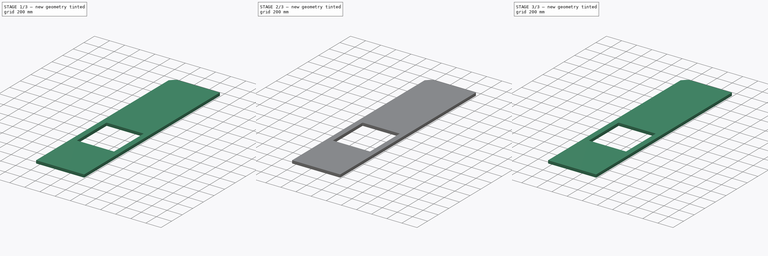
[diagram: build sequence overview — one tinted view per stage of 3, left to right]
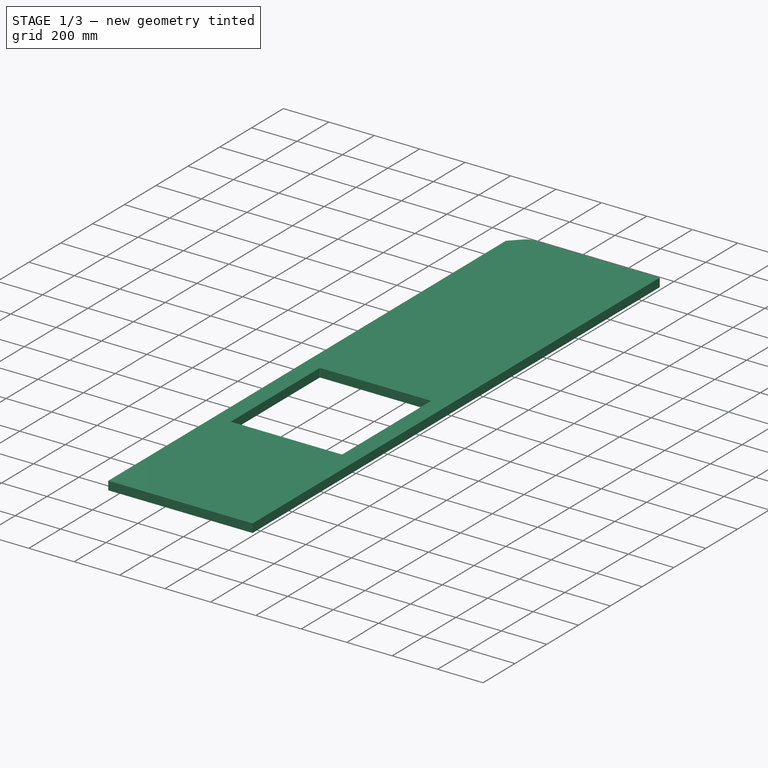
[diagram: stage 1 of 3 — iso view after this stage's code; geometry added in this stage tinted green]
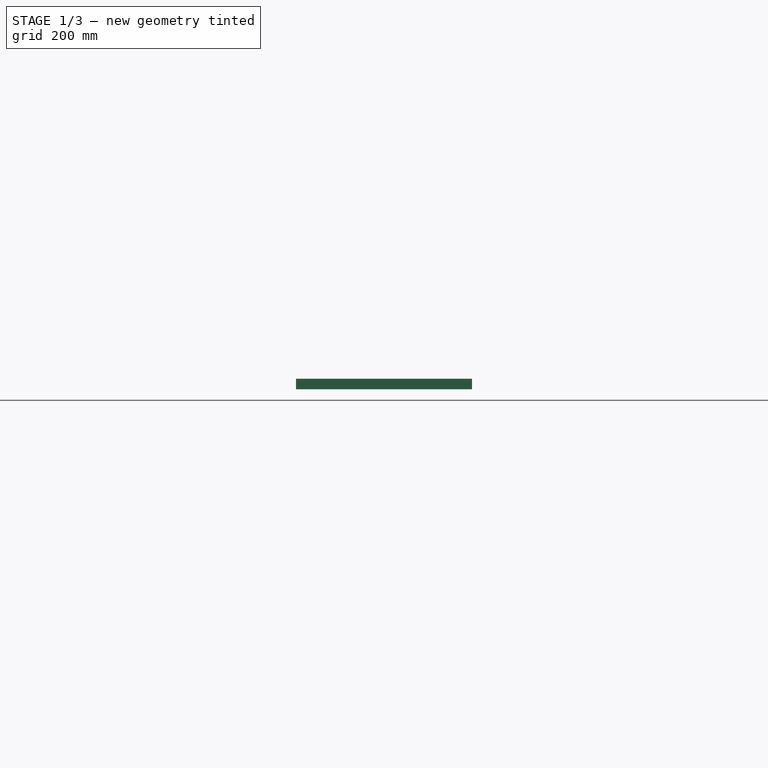
[diagram: stage 1 of 3 — front view after this stage's code; geometry added in this stage tinted green]
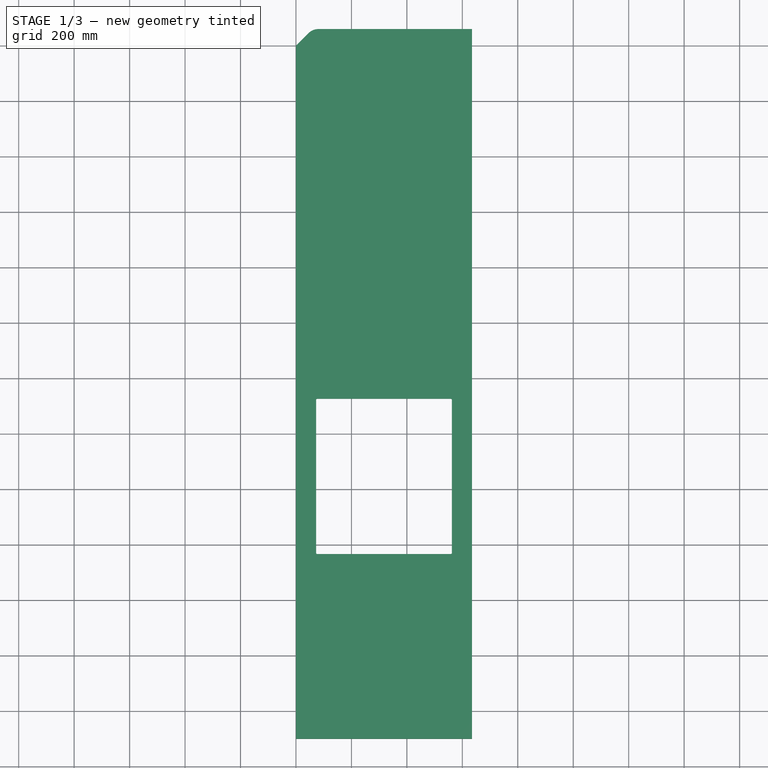
[diagram: stage 1 of 3 — top view after this stage's code; geometry added in this stage tinted green]
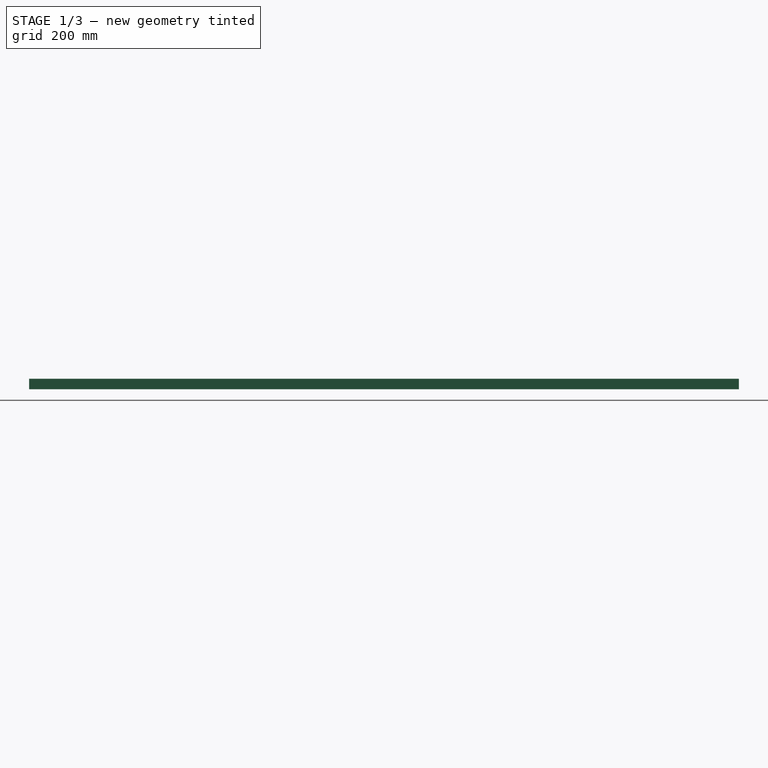
[diagram: stage 1 of 3 — right view after this stage's code; geometry added in this stage tinted green]
FCSTD DOCUMENT  (FreeCAD 1.0R39319 (Git))
Label: Worktop 2
License: All rights reserved
LicenseURL: https://en.wikipedia.org/wiki/All_rights_reserved
objects: PartDesign::Fillet×4, Sketcher::SketchObject×2, PartDesign::Pad×1, PartDesign::Pocket×1, PartDesign::Body×1
note: 23 computed .brp shape members not serialized (recipe doc carries the construction recipe); baked Part::Feature solids carry a one-line shape summary decoded from their .brp

FEATURE [Sketcher::SketchObject] Sketch
  ArcFitTolerance = 1e-06
  AttachmentSupport = -> [XY_Plane]
  FullyConstrained = true
  MakeInternals = false
  MapMode = 5
  sketch-geometry (15):
    g0: LineSegment StartX=0 StartY=0 StartZ=0 EndX=45.3553 EndY=45.3553 EndZ=0
    g1: ArcOfCircle CenterX=80.7107 CenterY=10 CenterZ=0 NormalX=0 NormalY=0 NormalZ=1 AngleXU=0 Radius=50 StartAngle=1.5708 EndAngle=2.35619
    g2: LineSegment StartX=80.7107 StartY=60 StartZ=0 EndX=635 EndY=60 EndZ=0
    g3: LineSegment StartX=635 StartY=60 StartZ=0 EndX=635 EndY=-2500 EndZ=0
    g4: LineSegment StartX=635 StartY=-2500 StartZ=0 EndX=0 EndY=-2500 EndZ=0
    g5: LineSegment StartX=0 StartY=-2500 StartZ=0 EndX=0 EndY=0 EndZ=0
    g6: LineSegment StartX=72.5 StartY=-1273.5 StartZ=0 EndX=72.5 EndY=-1833.5 EndZ=0
    g7: LineSegment StartX=72.5 StartY=-1833.5 StartZ=0 EndX=562.5 EndY=-1833.5 EndZ=0
    g8: LineSegment StartX=562.5 StartY=-1833.5 StartZ=0 EndX=562.5 EndY=-1273.5 EndZ=0
    g9: LineSegment StartX=562.5 StartY=-1273.5 StartZ=0 EndX=72.5 EndY=-1273.5 EndZ=0
    g10: LineSegment [constr] StartX=562.5 StartY=-1553.5 StartZ=0 EndX=635 EndY=-1553.5 EndZ=0
    g11: LineSegment [constr] StartX=72.5 StartY=-1553.5 StartZ=0 EndX=0 EndY=-1553.5 EndZ=0
    g12: LineSegment [constr] StartX=462.5 StartY=-1273.5 StartZ=0 EndX=462.5 EndY=-1553.5 EndZ=0
    g13: LineSegment [constr] StartX=462.5 StartY=-1833.5 StartZ=0 EndX=462.5 EndY=-1553.5 EndZ=0
    g14: LineSegment [constr] StartX=562.5 StartY=-1553.5 StartZ=0 EndX=72.5 EndY=-1553.5 EndZ=0
  constraints (45):
    c: Coincident(g0,g-1)
    c: Tangent(g1,g0) = 1.5708
    c: Angle(g0,g-1) = 2.35619
    c: Horizontal(g2)
    c: Tangent(g2,g1) = 1.5708
    c: Radius(g1) = 50
    c: Distance(g2,g-1) = 60
    c: Distance(g2,g-2) = 635
    c: Coincident(g3,g2)
    c: Vertical(g3)
    c: Coincident(g4,g3)
    c: PointOnObject(g4,g-2)
    c: Horizontal(g4)
    c: Coincident(g5,g4)
    c: Coincident(g5,g0)
    c: Distance(g-1,g4) = 2500
    c: Coincident(g6,g7)
    c: Coincident(g7,g8)
    c: Coincident(g8,g9)
    c: Coincident(g9,g6)
    c: Vertical(g6)
    c: Vertical(g8)
    c: Horizontal(g7)
    c: Horizontal(g9)
    c: Distance(g6,g8) = 490
    c: Distance(g7,g9) = 560
    c: PointOnObject(g10,g8)
    c: PointOnObject(g10,g3)
    c: Horizontal(g10)
    c: PointOnObject(g11,g6)
    c: PointOnObject(g11,g5)
    c: Horizontal(g11)
    c: Equal(g11,g10)
    c: PointOnObject(g12,g9)
    c: Vertical(g12)
    c: PointOnObject(g13,g7)
    c: Coincident(g13,g12)
    c: PointOnObject(g12,g14)
    c: Horizontal(g14)
    c: Vertical(g13)
    c: Equal(g12,g13)
    c: Distance(g4,g14) = 946.5
    c: Coincident(g10,g14)
    c: Coincident(g11,g14)
    c: Distance(g12,g8) = 100
FEATURE [PartDesign::Pad] Pad
  Direction = (0,0,1)
  Length = 38
  Length2 = 10
  Profile = -> Sketch
  ReferenceAxis = -> Sketch [N_Axis]
  Refine = true
  Suppressed = false
  Type = 0
FEATURE [PartDesign::Fillet] Fillet
  Base = -> Pad [Edge23,Edge26,Edge19,Edge20]
  BaseFeature = -> Pad
  Radius = 4
  Refine = true
  SupportTransform = false
  Suppressed = false
  UseAllEdges = false
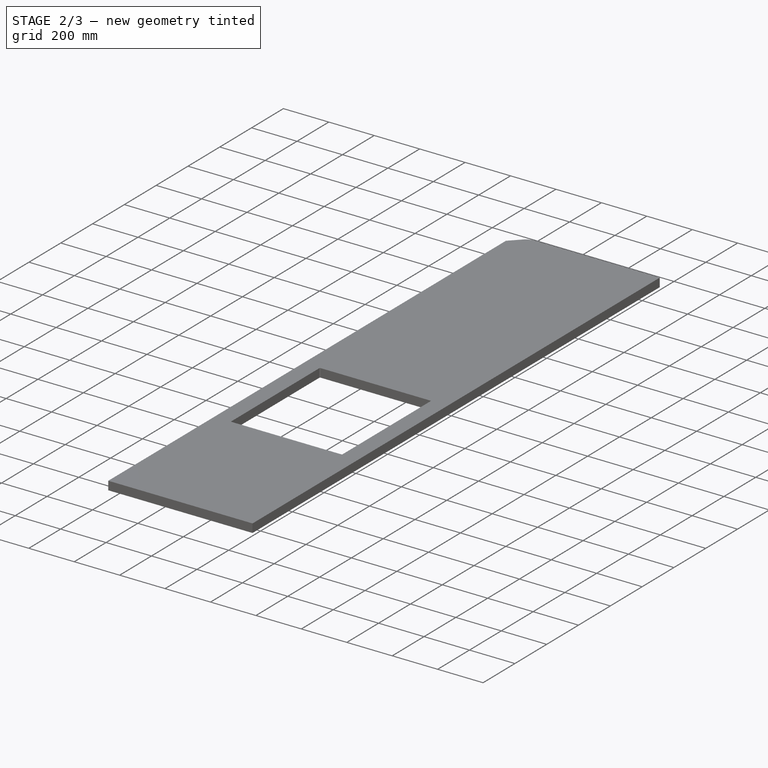
[diagram: stage 2 of 3 — iso view after this stage's code; geometry added in this stage tinted green]
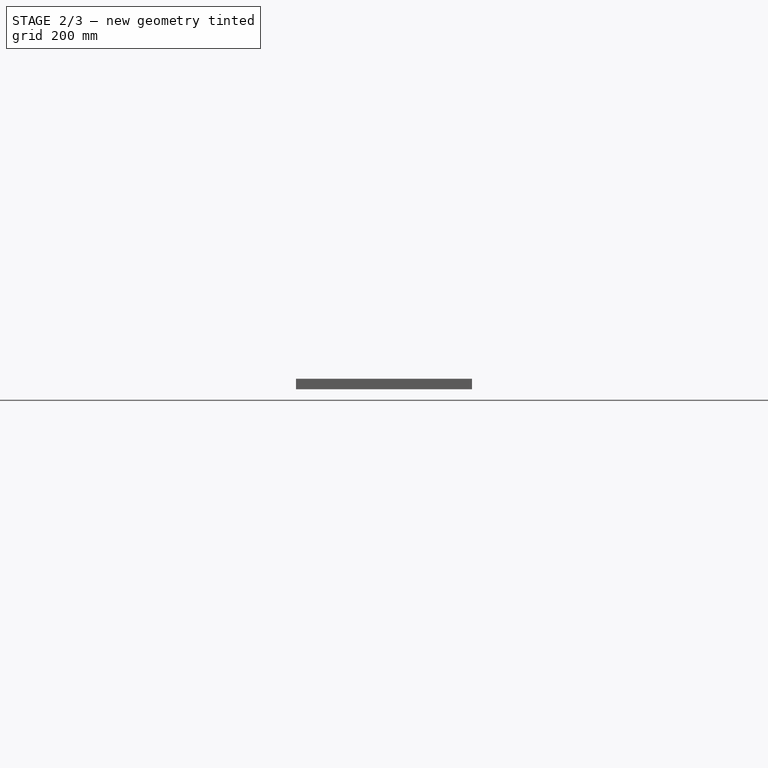
[diagram: stage 2 of 3 — front view after this stage's code; geometry added in this stage tinted green]
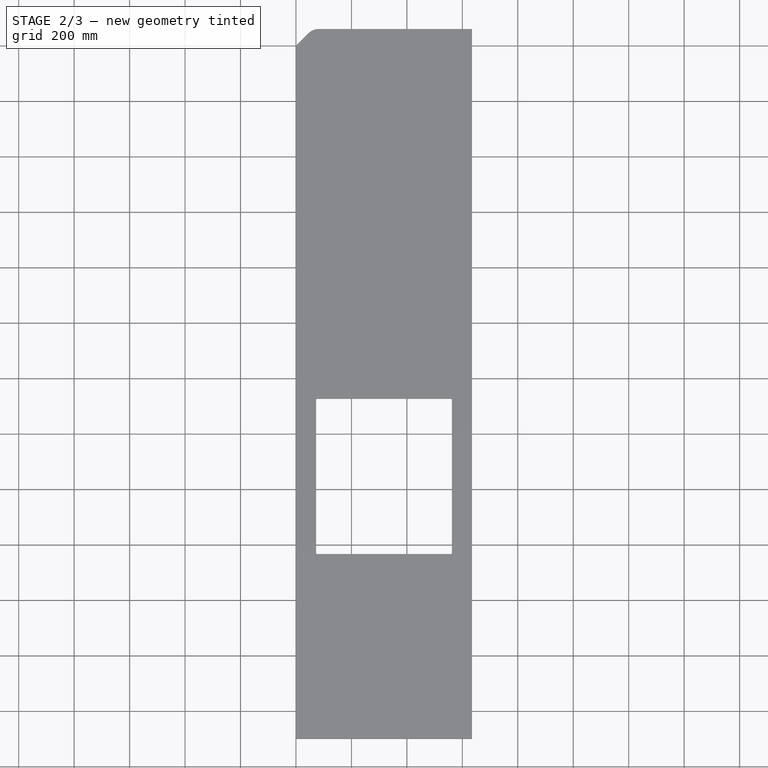
[diagram: stage 2 of 3 — top view after this stage's code; geometry added in this stage tinted green]
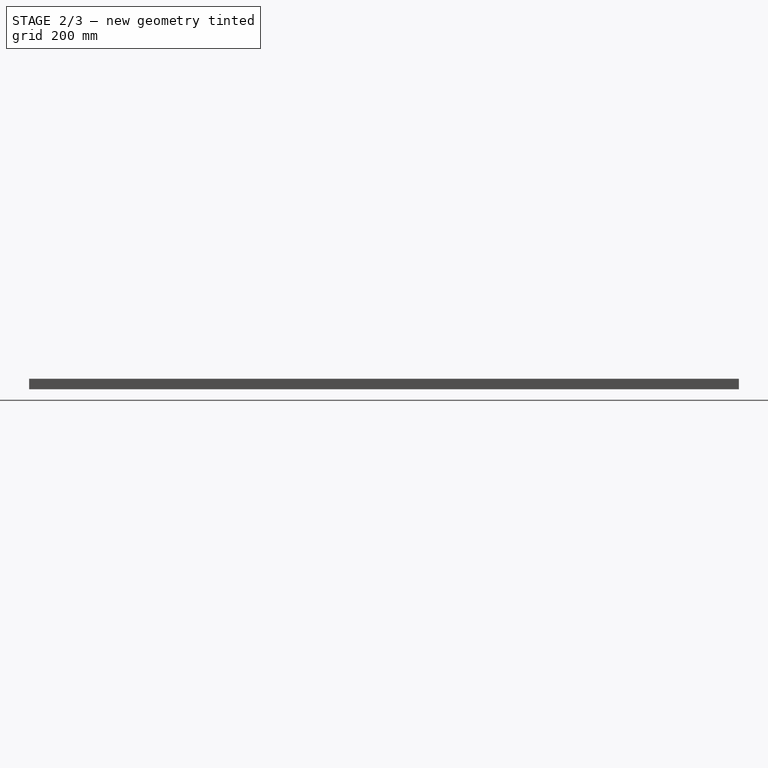
[diagram: stage 2 of 3 — right view after this stage's code; geometry added in this stage tinted green]
FEATURE [Sketcher::SketchObject] Sketch001
  ArcFitTolerance = 1e-06
  AttachmentSupport = -> [Fillet]
  ExternalGeometry = -> [Fillet]
  FullyConstrained = true
  MakeInternals = false
  MapMode = 5
  Placement = pos=(0,0,0) rot=(1,0,0;3.14159rad)
  sketch-geometry (36):
    g0: LineSegment StartX=105 StartY=-60 StartZ=0 EndX=105 EndY=10 EndZ=0
    g1: LineSegment StartX=105 StartY=10 StartZ=0 EndX=80 EndY=35 EndZ=0
    g2: LineSegment StartX=80 StartY=35 StartZ=0 EndX=80 EndY=70 EndZ=0
    g3: LineSegment StartX=80 StartY=70 StartZ=0 EndX=140 EndY=70 EndZ=0
    g4: LineSegment StartX=140 StartY=70 StartZ=0 EndX=140 EndY=35 EndZ=0
    g5: LineSegment StartX=140 StartY=35 StartZ=0 EndX=115 EndY=10 EndZ=0
    g6: LineSegment StartX=115 StartY=10 StartZ=0 EndX=115 EndY=-60 EndZ=0
    g7: LineSegment [constr] StartX=115 StartY=10 StartZ=0 EndX=110 EndY=10 EndZ=0
    g8: LineSegment [constr] StartX=110 StartY=10 StartZ=0 EndX=110 EndY=70 EndZ=0
    g9: LineSegment [constr] StartX=105 StartY=10 StartZ=0 EndX=110 EndY=10 EndZ=0
    g10: LineSegment StartX=455 StartY=-60 StartZ=0 EndX=455 EndY=10 EndZ=0
    g11: LineSegment StartX=455 StartY=10 StartZ=0 EndX=430 EndY=35 EndZ=0
    g12: LineSegment StartX=430 StartY=35 StartZ=0 EndX=430 EndY=70 EndZ=0
    g13: LineSegment StartX=430 StartY=70 StartZ=0 EndX=490 EndY=70 EndZ=0
    g14: LineSegment StartX=490 StartY=70 StartZ=0 EndX=490 EndY=35 EndZ=0
    g15: LineSegment StartX=490 StartY=35 StartZ=0 EndX=465 EndY=10 EndZ=0
    g16: LineSegment StartX=465 StartY=10 StartZ=0 EndX=465 EndY=-60 EndZ=0
    g17: LineSegment [constr] StartX=465 StartY=10 StartZ=0 EndX=460 EndY=10 EndZ=0
    g18: LineSegment [constr] StartX=460 StartY=10 StartZ=0 EndX=460 EndY=70 EndZ=0
    g19: LineSegment [constr] StartX=455 StartY=10 StartZ=0 EndX=460 EndY=10 EndZ=0
    g20: LineSegment StartX=465 StartY=-60 StartZ=0 EndX=455 EndY=-60 EndZ=0
    g21: LineSegment StartX=115 StartY=-60 StartZ=0 EndX=105 EndY=-60 EndZ=0
    g22: LineSegment StartX=280 StartY=-60 StartZ=0 EndX=280 EndY=10 EndZ=0
    g23: LineSegment StartX=280 StartY=10 StartZ=0 EndX=255 EndY=35 EndZ=0
    g24: LineSegment StartX=255 StartY=35 StartZ=0 EndX=255 EndY=70 EndZ=0
    g25: LineSegment StartX=255 StartY=70 StartZ=0 EndX=315 EndY=70 EndZ=0
    g26: LineSegment StartX=315 StartY=70 StartZ=0 EndX=315 EndY=35 EndZ=0
    g27: LineSegment StartX=315 StartY=35 StartZ=0 EndX=290 EndY=10 EndZ=0
    g28: LineSegment StartX=290 StartY=10 StartZ=0 EndX=290 EndY=-60 EndZ=0
    g29: LineSegment [constr] StartX=290 StartY=10 StartZ=0 EndX=285 EndY=10 EndZ=0
    g30: LineSegment [constr] StartX=285 StartY=10 StartZ=0 EndX=285 EndY=70 EndZ=0
    g31: LineSegment [constr] StartX=280 StartY=10 StartZ=0 EndX=285 EndY=10 EndZ=0
    g32: LineSegment StartX=290 StartY=-60 StartZ=0 EndX=280 EndY=-60 EndZ=0
    g33: LineSegment [constr] StartX=110 StartY=70 StartZ=0 EndX=285 EndY=70 EndZ=0
    g34: LineSegment [constr] StartX=285 StartY=70 StartZ=0 EndX=460 EndY=70 EndZ=0
    g35: LineSegment [constr] StartX=460 StartY=70 StartZ=0 EndX=635 EndY=70 EndZ=0
  constraints (100):
    c: PointOnObject(g0,g-3)
    c: Vertical(g0)
    c: Coincident(g1,g0)
    c: Coincident(g2,g1)
    c: Vertical(g2)
    c: Coincident(g3,g2)
    c: Horizontal(g3)
    c: Coincident(g4,g3)
    c: Coincident(g5,g4)
    c: Coincident(g6,g5)
    c: PointOnObject(g6,g-3)
    c: Vertical(g6)
    c: Coincident(g7,g5)
    c: Coincident(g8,g7)
    c: Symmetric(g3,g3,g8)
    c: Vertical(g8)
    c: Vertical(g4)
    c: Coincident(g9,g0)
    c: Coincident(g9,g7)
    c: Horizontal(g9)
    c: Horizontal(g7)
    c: Equal(g7,g9)
    c: Equal(g1,g5)
    c: Angle(g6,g5) = 2.35619
    c: DistanceX(g3,g3) = 60
    c: DistanceY(g8,g8) = 60
    c: DistanceY(g6,g6) = 70
    c: Distance(g0,g6) = 10
    c: Vertical(g10)
    c: Coincident(g11,g10)
    c: Coincident(g12,g11)
    c: Vertical(g12)
    c: Coincident(g13,g12)
    c: Horizontal(g13)
    c: Coincident(g14,g13)
    c: Coincident(g15,g14)
    c: Coincident(g16,g15)
    c: Vertical(g16)
    c: Coincident(g17,g15)
    c: Coincident(g18,g17)
    c: Symmetric(g13,g13,g18)
    c: Vertical(g18)
    c: Vertical(g14)
    c: Coincident(g19,g10)
    c: Coincident(g19,g17)
    c: Horizontal(g19)
    c: Horizontal(g17)
    c: Equal(g17,g19)
    c: Equal(g11,g15)
    c: Angle(g16,g15) = 2.35619
    c: DistanceX(g13,g13) = 60
    c: DistanceY(g18,g18) = 60
    c: DistanceY(g16,g16) = 70
    c: Distance(g10,g16) = 10
    c: Equal(g10,g16)
    c: PointOnObject(g16,g-3)
    c: Coincident(g20,g16)
    c: Coincident(g20,g10)
    c: Coincident(g21,g6)
    c: Coincident(g21,g0)
    c: Vertical(g22)
    c: Coincident(g23,g22)
    c: Coincident(g24,g23)
    c: Vertical(g24)
    c: Coincident(g25,g24)
    c: Horizontal(g25)
    c: Coincident(g26,g25)
    c: Coincident(g27,g26)
    c: Coincident(g28,g27)
    c: Vertical(g28)
    c: Coincident(g29,g27)
    c: Coincident(g30,g29)
    c: Symmetric(g25,g25,g30)
    c: Vertical(g30)
    c: Vertical(g26)
    c: Coincident(g31,g22)
    c: Coincident(g31,g29)
    c: Horizontal(g31)
    c: Horizontal(g29)
    c: Equal(g29,g31)
    c: Equal(g23,g27)
    c: Angle(g28,g27) = 2.35619
    c: DistanceX(g25,g25) = 60
    c: DistanceY(g30,g30) = 60
    c: DistanceY(g28,g28) = 70
    c: Distance(g22,g28) = 10
    c: Coincident(g32,g28)
    c: Coincident(g32,g22)
    c: Coincident(g33,g8)
    c: Coincident(g33,g30)
    c: Horizontal(g33)
    c: Coincident(g34,g30)
    c: Coincident(g34,g18)
    c: Coincident(g35,g18)
    c: PointOnObject(g35,g-4)
    c: Horizontal(g35)
    c: Equal(g34,g33)
    c: Equal(g34,g35)
    c: DistanceX(g35,g35) = 175
    c: PointOnObject(g22,g-3)
FEATURE [PartDesign::Pocket] Pocket
  BaseFeature = -> Fillet
  Direction = (0,0,1)
  Length = 20
  Length2 = 5
  Profile = -> Sketch001
  ReferenceAxis = -> Sketch001 [N_Axis]
  Refine = true
  Suppressed = false
  Type = 0
FEATURE [PartDesign::Fillet] Fillet001
  Base = -> Pocket [Edge76,Edge78,Edge72,Edge74]
  BaseFeature = -> Pocket
  Radius = 4
  Refine = true
  SupportTransform = false
  Suppressed = false
  UseAllEdges = false
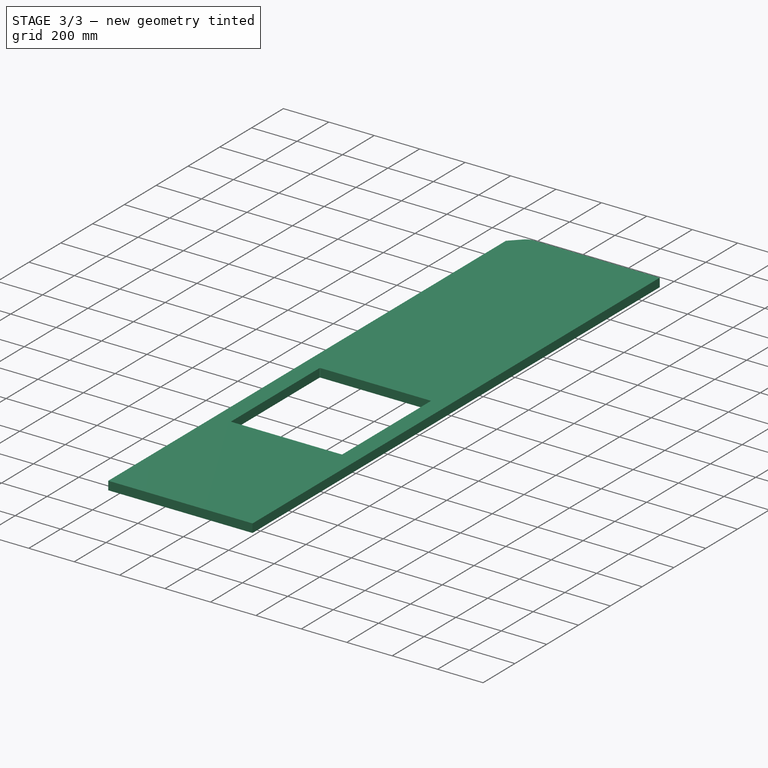
[diagram: stage 3 of 3 — iso view after this stage's code; geometry added in this stage tinted green]
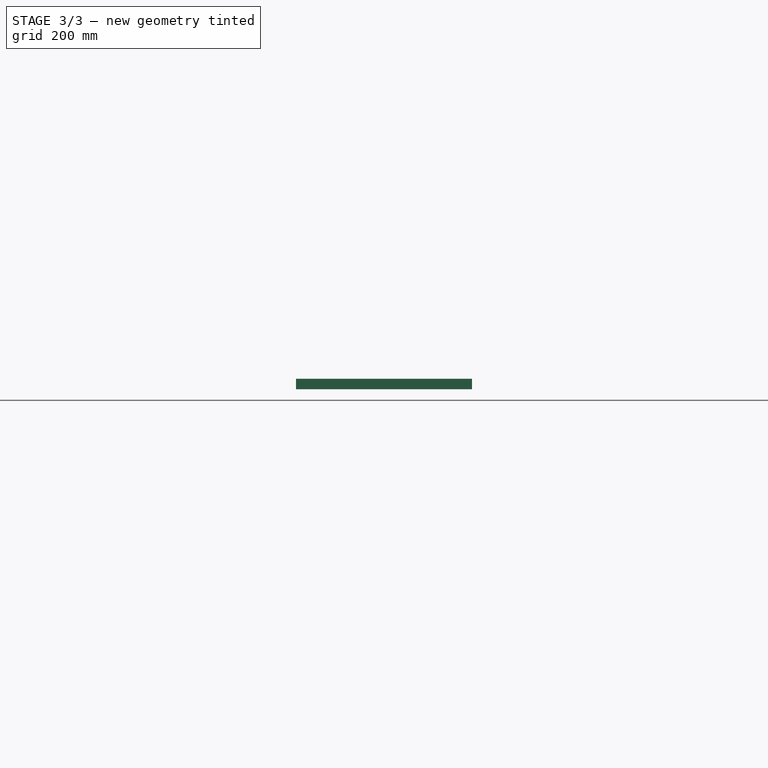
[diagram: stage 3 of 3 — front view after this stage's code; geometry added in this stage tinted green]
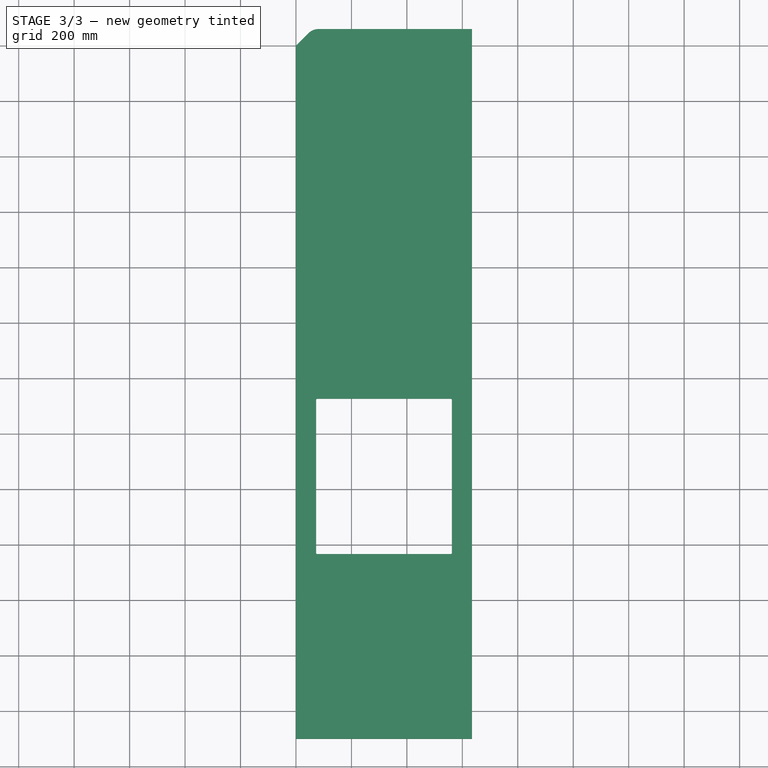
[diagram: stage 3 of 3 — top view after this stage's code; geometry added in this stage tinted green]
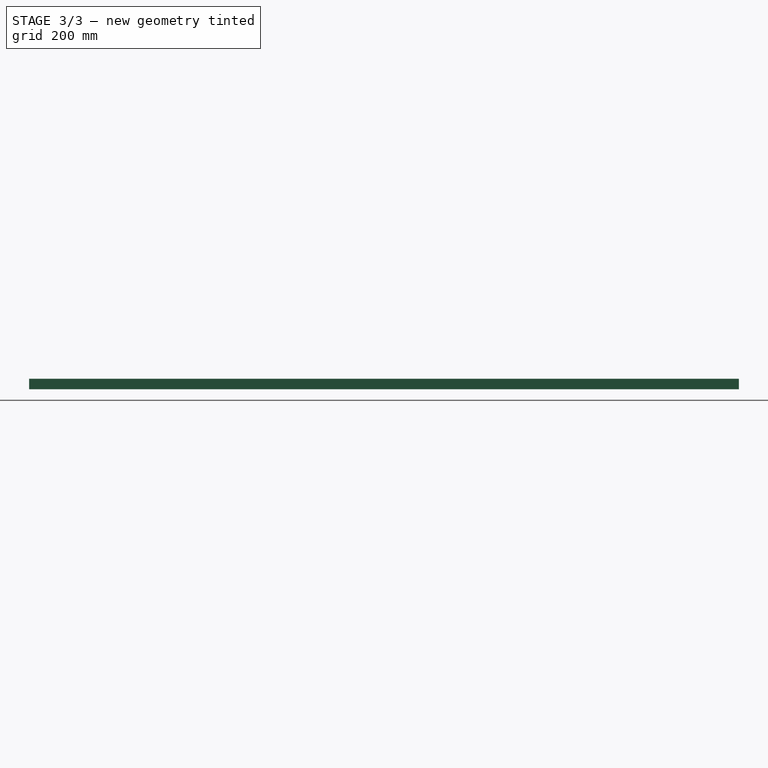
[diagram: stage 3 of 3 — right view after this stage's code; geometry added in this stage tinted green]
FEATURE [PartDesign::Fillet] Fillet002
  Base = -> Fillet001 [Edge95,Edge91,Edge87,Edge99]
  BaseFeature = -> Fillet001
  Radius = 4
  Refine = true
  SupportTransform = false
  Suppressed = false
  UseAllEdges = false
FEATURE [PartDesign::Fillet] Fillet003
  Base = -> Fillet002 [Edge101,Edge105,Edge109,Edge97]
  BaseFeature = -> Fillet002
  Radius = 3
  Refine = true
  SupportTransform = false
  Suppressed = false
  UseAllEdges = false
FEATURE [PartDesign::Body] Body
  AllowCompound = false
  Group = -> [Sketch,Pad,Fillet,Sketch001,Pocket,Fillet001,Fillet002,Fillet003]
  Origin = -> Origin
  Tip = -> Fillet003
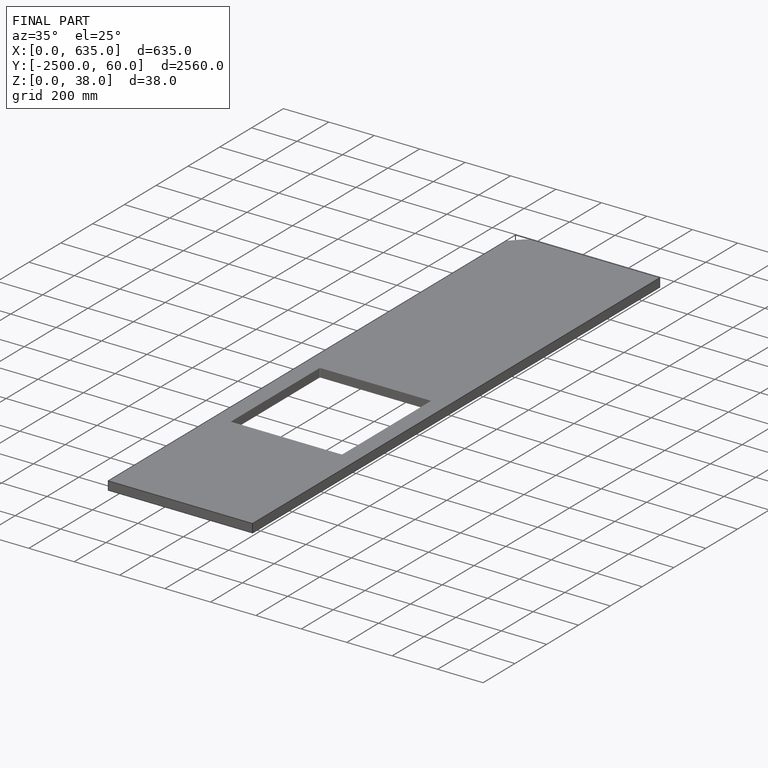
[diagram: finished part — iso view with bounding-box wireframe]
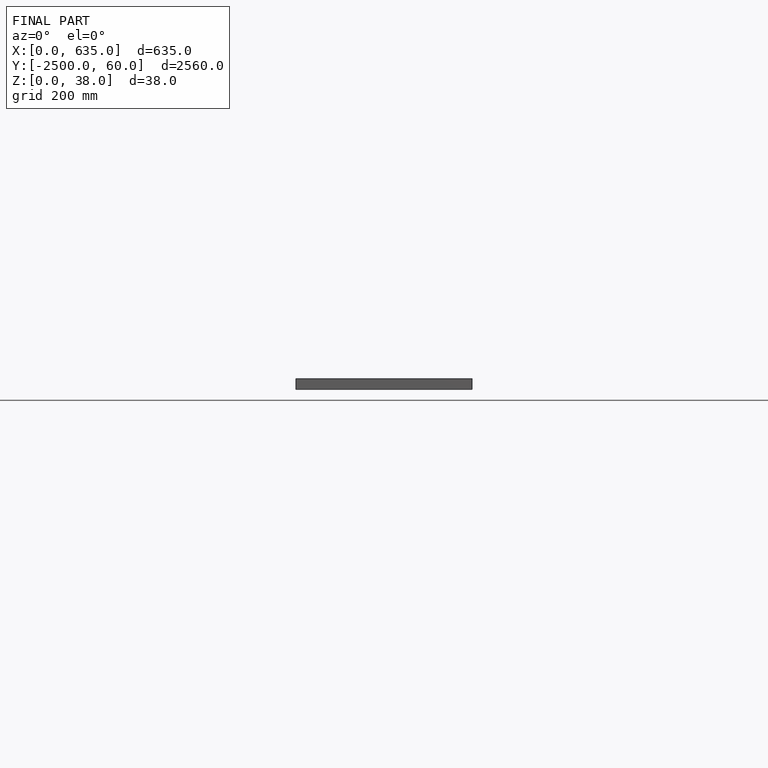
[diagram: finished part — front view with bounding-box wireframe]
